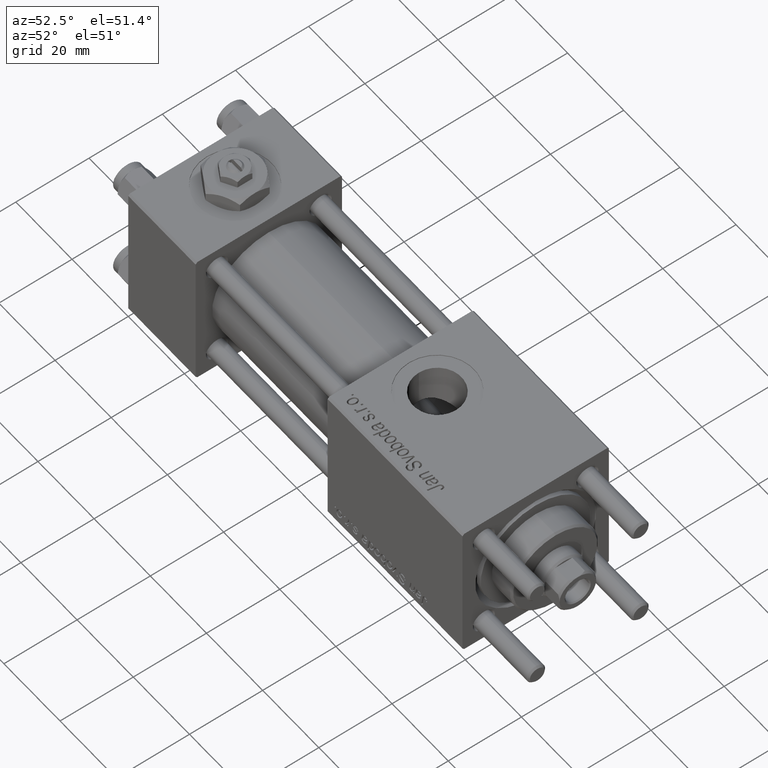
[diagram: clean part render]
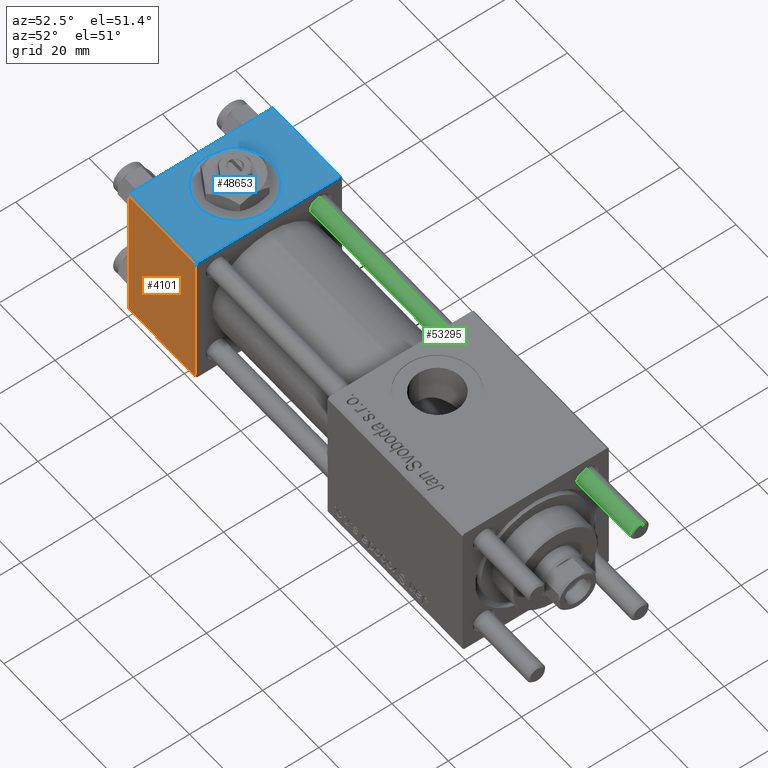
[diagram: same view with three faces highlighted in distinct colors, each labeled with its STEP entity id]
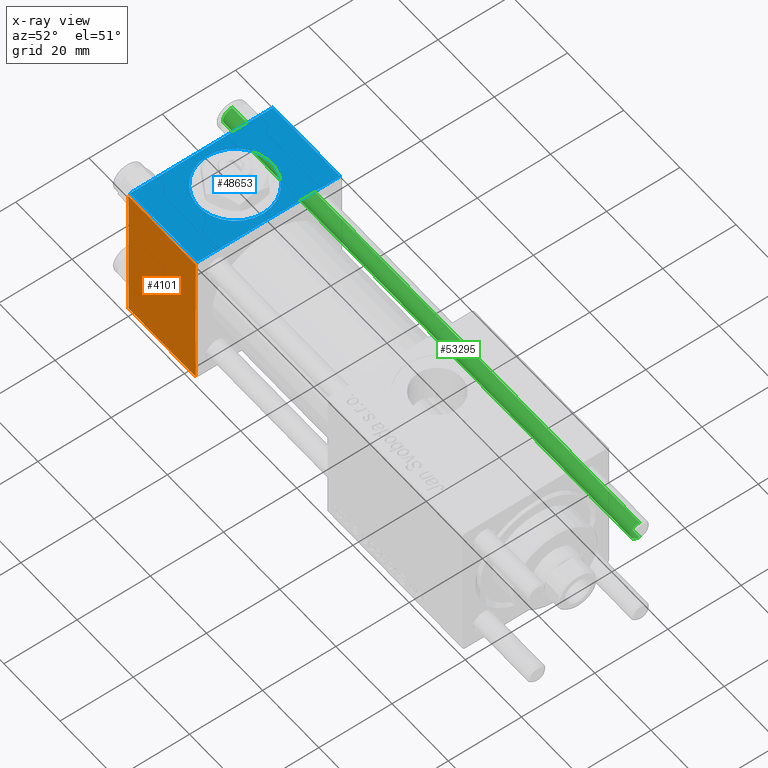
[diagram: x-ray of the same camera — body ghosted, the three highlighted faces saturated]
A machine part, auxiliary view with three faces highlighted in distinct colors.
The next image is the same camera in x-ray (body ghosted, the three faces saturated) — at least one of them is partly hidden behind the body in this view.
Their STEP definitions:

[orange] entity #4101 — the highlighted planar face has unit normal (0, 1, 0).
#973 = CARTESIAN_POINT ( 'NONE',  ( 24.00000000000000000, -20.00000000000000000, -19.49999999999999645 ) ) ;
#1207 = VERTEX_POINT ( 'NONE', #40855 ) ;
#1508 = CARTESIAN_POINT ( 'NONE',  ( 0.000000000000000000, -20.00000000000000355, 19.99999999999998934 ) ) ;
#4035 = AXIS2_PLACEMENT_3D ( 'NONE', #4440, #34892, #48516 ) ;
#4101 = ADVANCED_FACE ( 'NONE', ( #58255 ), #40804, .F. ) ;
#4440 = CARTESIAN_POINT ( 'NONE',  ( 24.00000000000000000, -20.00000000000000355, 19.99999999999998934 ) ) ;
#5145 = VERTEX_POINT ( 'NONE', #40172 ) ;
#7221 = ORIENTED_EDGE ( 'NONE', *, *, #25718, .F. ) ;
#9044 = VERTEX_POINT ( 'NONE', #44603 ) ;
#10656 = CARTESIAN_POINT ( 'NONE',  ( 24.00000000000000000, -20.00000000000000355, 19.49999999999998224 ) ) ;
#19989 = VECTOR ( 'NONE', #46876, 1000.000000000000000 ) ;
#24678 = LINE ( 'NONE', #51595, #19989 ) ;
#25718 = EDGE_CURVE ( 'NONE', #5145, #31352, #24678, .T. ) ;
#26645 = VECTOR ( 'NONE', #40448, 1000.000000000000000 ) ;
#27171 = ORIENTED_EDGE ( 'NONE', *, *, #53904, .T. ) ;
#27623 = VECTOR ( 'NONE', #38149, 1000.000000000000000 ) ;
#29707 = EDGE_LOOP ( 'NONE', ( #27171, #33912, #7221, #32305 ) ) ;
#31352 = VERTEX_POINT ( 'NONE', #973 ) ;
#32148 = LINE ( 'NONE', #32452, #26645 ) ;
#32305 = ORIENTED_EDGE ( 'NONE', *, *, #33593, .T. ) ;
#32452 = CARTESIAN_POINT ( 'NONE',  ( 24.00000000000000000, -20.00000000000000000, -19.49999999999999645 ) ) ;
#33593 = EDGE_CURVE ( 'NONE', #5145, #1207, #46747, .T. ) ;
#33912 = ORIENTED_EDGE ( 'NONE', *, *, #56750, .T. ) ;
#34892 = DIRECTION ( 'NONE',  ( -0.000000000000000000, 1.000000000000000000, 8.673617379884036705E-17 ) ) ;
#35305 = VECTOR ( 'NONE', #47026, 1000.000000000000000 ) ;
#38149 = DIRECTION ( 'NONE',  ( 0.000000000000000000, 8.673617379884036705E-17, -1.000000000000000000 ) ) ;
#40172 = CARTESIAN_POINT ( 'NONE',  ( 24.00000000000000000, -20.00000000000000355, 19.49999999999998224 ) ) ;
#40448 = DIRECTION ( 'NONE',  ( 1.000000000000000000, 0.000000000000000000, 0.000000000000000000 ) ) ;
#40804 = PLANE ( 'NONE',  #4035 ) ;
#40855 = CARTESIAN_POINT ( 'NONE',  ( 0.000000000000000000, -20.00000000000000355, 19.49999999999998224 ) ) ;
#42008 = LINE ( 'NONE', #1508, #27623 ) ;
#44603 = CARTESIAN_POINT ( 'NONE',  ( 0.000000000000000000, -20.00000000000000000, -19.49999999999999645 ) ) ;
#46747 = LINE ( 'NONE', #10656, #35305 ) ;
#46876 = DIRECTION ( 'NONE',  ( 0.000000000000000000, 8.673617379884036705E-17, -1.000000000000000000 ) ) ;
#47026 = DIRECTION ( 'NONE',  ( -1.000000000000000000, 0.000000000000000000, 0.000000000000000000 ) ) ;
#48516 = DIRECTION ( 'NONE',  ( 0.000000000000000000, -8.673617379884036705E-17, 1.000000000000000000 ) ) ;
#51595 = CARTESIAN_POINT ( 'NONE',  ( 24.00000000000000000, -20.00000000000000355, 19.99999999999998934 ) ) ;
#53904 = EDGE_CURVE ( 'NONE', #1207, #9044, #42008, .T. ) ;
#56750 = EDGE_CURVE ( 'NONE', #9044, #31352, #32148, .T. ) ;
#58255 = FACE_OUTER_BOUND ( 'NONE', #29707, .T. ) ;

[blue] entity #48653 — the highlighted planar face has unit normal (0, 0, -1).
#77 = AXIS2_PLACEMENT_3D ( 'NONE', #9628, #24390, #55731 ) ;
#520 = DIRECTION ( 'NONE',  ( -1.000000000000000000, 0.000000000000000000, 0.000000000000000000 ) ) ;
#1764 = FACE_OUTER_BOUND ( 'NONE', #45351, .T. ) ;
#2787 = ORIENTED_EDGE ( 'NONE', *, *, #4512, .F. ) ;
#2969 = EDGE_CURVE ( 'NONE', #41133, #26420, #34473, .T. ) ;
#3684 = LINE ( 'NONE', #48932, #4650 ) ;
#4512 = EDGE_CURVE ( 'NONE', #19295, #32312, #11566, .T. ) ;
#4650 = VECTOR ( 'NONE', #8402, 1000.000000000000000 ) ;
#5773 = VECTOR ( 'NONE', #30947, 1000.000000000000000 ) ;
#6481 = DIRECTION ( 'NONE',  ( 0.000000000000000000, 1.000000000000000000, 2.602085213965210149E-16 ) ) ;
#8350 = CARTESIAN_POINT ( 'NONE',  ( 12.00000000000000000, 1.540743955509788682E-30, 19.99999999999999645 ) ) ;
#8402 = DIRECTION ( 'NONE',  ( 0.000000000000000000, -1.000000000000000000, -2.602085213965210149E-16 ) ) ;
#8979 = EDGE_LOOP ( 'NONE', ( #2787, #55439 ) ) ;
#9628 = CARTESIAN_POINT ( 'NONE',  ( 12.00000000000000000, 1.540743955509788682E-30, 19.99999999999999645 ) ) ;
#11566 = CIRCLE ( 'NONE', #45573, 9.999999999999998224 ) ;
#15146 = AXIS2_PLACEMENT_3D ( 'NONE', #19225, #47002, #6481 ) ;
#17253 = VECTOR ( 'NONE', #520, 1000.000000000000000 ) ;
#18074 = CARTESIAN_POINT ( 'NONE',  ( 0.000000000000000000, 19.50000000000000000, 20.00000000000000000 ) ) ;
#18429 = CARTESIAN_POINT ( 'NONE',  ( 2.000000000000003553, 1.224646799147354440E-15, 19.99999999999999645 ) ) ;
#19225 = CARTESIAN_POINT ( 'NONE',  ( 24.00000000000000000, 20.00000000000000000, 20.00000000000000000 ) ) ;
#19295 = VERTEX_POINT ( 'NONE', #43191 ) ;
#19787 = PLANE ( 'NONE',  #15146 ) ;
#21962 = DIRECTION ( 'NONE',  ( 1.000000000000000000, 0.000000000000000000, 0.000000000000000000 ) ) ;
#22525 = EDGE_CURVE ( 'NONE', #32312, #19295, #53883, .T. ) ;
#23429 = EDGE_CURVE ( 'NONE', #54699, #26420, #41003, .T. ) ;
#24390 = DIRECTION ( 'NONE',  ( 0.000000000000000000, 0.000000000000000000, 1.000000000000000000 ) ) ;
#26420 = VERTEX_POINT ( 'NONE', #47244 ) ;
#28012 = CARTESIAN_POINT ( 'NONE',  ( 24.00000000000000000, 19.50000000000000000, 20.00000000000000000 ) ) ;
#30947 = DIRECTION ( 'NONE',  ( 1.000000000000000000, 0.000000000000000000, 0.000000000000000000 ) ) ;
#31373 = VECTOR ( 'NONE', #48367, 1000.000000000000000 ) ;
#32312 = VERTEX_POINT ( 'NONE', #18429 ) ;
#33469 = VERTEX_POINT ( 'NONE', #18074 ) ;
#34473 = LINE ( 'NONE', #53384, #31373 ) ;
#38417 = ORIENTED_EDGE ( 'NONE', *, *, #2969, .F. ) ;
#39828 = ORIENTED_EDGE ( 'NONE', *, *, #55121, .T. ) ;
#40720 = LINE ( 'NONE', #54899, #17253 ) ;
#41003 = LINE ( 'NONE', #50163, #5773 ) ;
#41133 = VERTEX_POINT ( 'NONE', #28012 ) ;
#42267 = FACE_BOUND ( 'NONE', #8979, .T. ) ;
#43191 = CARTESIAN_POINT ( 'NONE',  ( 22.00000000000000000, 1.540743955509788682E-30, 19.99999999999999645 ) ) ;
#43973 = EDGE_CURVE ( 'NONE', #33469, #54699, #3684, .T. ) ;
#44742 = DIRECTION ( 'NONE',  ( 0.000000000000000000, 0.000000000000000000, 1.000000000000000000 ) ) ;
#45351 = EDGE_LOOP ( 'NONE', ( #50508, #57927, #38417, #39828 ) ) ;
#45573 = AXIS2_PLACEMENT_3D ( 'NONE', #8350, #44742, #21962 ) ;
#47002 = DIRECTION ( 'NONE',  ( 0.000000000000000000, 2.602085213965210149E-16, -1.000000000000000000 ) ) ;
#47244 = CARTESIAN_POINT ( 'NONE',  ( 24.00000000000000000, -19.49999999999999289, 19.99999999999998934 ) ) ;
#48367 = DIRECTION ( 'NONE',  ( 0.000000000000000000, -1.000000000000000000, -2.602085213965210149E-16 ) ) ;
#48653 = ADVANCED_FACE ( 'NONE', ( #42267, #1764 ), #19787, .F. ) ;
#48932 = CARTESIAN_POINT ( 'NONE',  ( 0.000000000000000000, 20.00000000000000000, 20.00000000000000000 ) ) ;
#50163 = CARTESIAN_POINT ( 'NONE',  ( 24.00000000000000000, -19.49999999999999289, 19.99999999999998934 ) ) ;
#50508 = ORIENTED_EDGE ( 'NONE', *, *, #43973, .T. ) ;
#53384 = CARTESIAN_POINT ( 'NONE',  ( 24.00000000000000000, 20.00000000000000000, 20.00000000000000000 ) ) ;
#53883 = CIRCLE ( 'NONE', #77, 9.999999999999998224 ) ;
#54699 = VERTEX_POINT ( 'NONE', #56468 ) ;
#54899 = CARTESIAN_POINT ( 'NONE',  ( 0.000000000000000000, 19.50000000000000000, 20.00000000000000000 ) ) ;
#55121 = EDGE_CURVE ( 'NONE', #41133, #33469, #40720, .T. ) ;
#55439 = ORIENTED_EDGE ( 'NONE', *, *, #22525, .F. ) ;
#55731 = DIRECTION ( 'NONE',  ( 1.000000000000000000, 0.000000000000000000, 0.000000000000000000 ) ) ;
#56468 = CARTESIAN_POINT ( 'NONE',  ( 0.000000000000000000, -19.49999999999999289, 19.99999999999998934 ) ) ;
#57927 = ORIENTED_EDGE ( 'NONE', *, *, #23429, .T. ) ;

[green] entity #53295 — the highlighted cylindrical surface (edge-blend (fillet) strip) has radius 2.5 mm, axis along (1, -0, -0).
#236 = AXIS2_PLACEMENT_3D ( 'NONE', #22023, #58099, #23191 ) ;
#525 = CARTESIAN_POINT ( 'NONE',  ( 2.500000000000000000, 3.061616997868383141E-16, 145.5000000000000284 ) ) ;
#2224 = CIRCLE ( 'NONE', #44733, 2.500000000000000000 ) ;
#3673 = CARTESIAN_POINT ( 'NONE',  ( 2.500000000000000000, 3.061616997868383141E-16, 146.0000000000000000 ) ) ;
#3993 = CYLINDRICAL_SURFACE ( 'NONE', #236, 2.500000000000000000 ) ;
#4228 = CARTESIAN_POINT ( 'NONE',  ( -2.500000000000000000, 0.000000000000000000, 145.5000000000000284 ) ) ;
#8989 = LINE ( 'NONE', #39454, #52154 ) ;
#13114 = DIRECTION ( 'NONE',  ( -0.000000000000000000, -0.000000000000000000, -1.000000000000000000 ) ) ;
#13417 = LINE ( 'NONE', #3673, #27595 ) ;
#14051 = DIRECTION ( 'NONE',  ( 0.000000000000000000, 0.000000000000000000, -1.000000000000000000 ) ) ;
#15457 = EDGE_CURVE ( 'NONE', #43353, #53031, #48155, .T. ) ;
#16006 = AXIS2_PLACEMENT_3D ( 'NONE', #58150, #17032, #18218 ) ;
#17032 = DIRECTION ( 'NONE',  ( -0.000000000000000000, -0.000000000000000000, 1.000000000000000000 ) ) ;
#18218 = DIRECTION ( 'NONE',  ( 1.000000000000000000, 0.000000000000000000, 0.000000000000000000 ) ) ;
#22023 = CARTESIAN_POINT ( 'NONE',  ( 0.000000000000000000, 0.000000000000000000, 146.0000000000000000 ) ) ;
#23191 = DIRECTION ( 'NONE',  ( -1.000000000000000000, 0.000000000000000000, 0.000000000000000000 ) ) ;
#25652 = ORIENTED_EDGE ( 'NONE', *, *, #30952, .T. ) ;
#26846 = EDGE_CURVE ( 'NONE', #41111, #53031, #13417, .T. ) ;
#26857 = EDGE_CURVE ( 'NONE', #36476, #43353, #8989, .T. ) ;
#27407 = CARTESIAN_POINT ( 'NONE',  ( 2.500000000000000000, 3.061616997868383141E-16, 0.5000000000000559552 ) ) ;
#27595 = VECTOR ( 'NONE', #53355, 1000.000000000000000 ) ;
#30952 = EDGE_CURVE ( 'NONE', #41111, #36476, #2224, .T. ) ;
#31512 = DIRECTION ( 'NONE',  ( 1.000000000000000000, 0.000000000000000000, 0.000000000000000000 ) ) ;
#36476 = VERTEX_POINT ( 'NONE', #4228 ) ;
#38870 = EDGE_LOOP ( 'NONE', ( #52366, #25652, #58169, #49409 ) ) ;
#39454 = CARTESIAN_POINT ( 'NONE',  ( -2.500000000000000000, 0.000000000000000000, 146.0000000000000000 ) ) ;
#41111 = VERTEX_POINT ( 'NONE', #525 ) ;
#43353 = VERTEX_POINT ( 'NONE', #53842 ) ;
#44496 = FACE_OUTER_BOUND ( 'NONE', #38870, .T. ) ;
#44733 = AXIS2_PLACEMENT_3D ( 'NONE', #49847, #14051, #31512 ) ;
#48155 = CIRCLE ( 'NONE', #16006, 2.500000000000000000 ) ;
#49409 = ORIENTED_EDGE ( 'NONE', *, *, #15457, .T. ) ;
#49847 = CARTESIAN_POINT ( 'NONE',  ( 0.000000000000000000, 0.000000000000000000, 145.5000000000000284 ) ) ;
#52154 = VECTOR ( 'NONE', #13114, 1000.000000000000000 ) ;
#52366 = ORIENTED_EDGE ( 'NONE', *, *, #26846, .F. ) ;
#53031 = VERTEX_POINT ( 'NONE', #27407 ) ;
#53295 = ADVANCED_FACE ( 'NONE', ( #44496 ), #3993, .T. ) ;
#53355 = DIRECTION ( 'NONE',  ( -0.000000000000000000, -0.000000000000000000, -1.000000000000000000 ) ) ;
#53842 = CARTESIAN_POINT ( 'NONE',  ( -2.500000000000000000, 0.000000000000000000, 0.5000000000000559552 ) ) ;
#58099 = DIRECTION ( 'NONE',  ( -0.000000000000000000, -0.000000000000000000, -1.000000000000000000 ) ) ;
#58150 = CARTESIAN_POINT ( 'NONE',  ( 0.000000000000000000, 0.000000000000000000, 0.5000000000000559552 ) ) ;
#58169 = ORIENTED_EDGE ( 'NONE', *, *, #26857, .T. ) ;